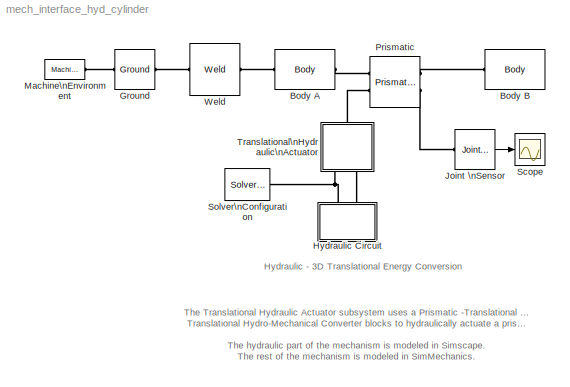
MODEL mech_interface_hyd_cylinder
KIND model
CONFIG PostLoadFcn = hws = get_param(gcs, 'modelworkspace');\n\nhws.assignin('a_a', 0.5);\nhws.assignin('a_b', 0.25);\nhws.assignin('a_c', 0.25);\nhws.assignin('b_a', 0.5);\nhws.assignin('b_b', 0.25);\nhws.assignin('b_c', 0.25);\n\nhws.assignin('Ma', 1);\nhws.assignin('Mb', 1);\n\nhws.evalin('Ia = [1/3*Ma*(a_b^2 + a_c^2) 0 0;   0 1/3*Ma*(a_a^2 + a_c^2) 0;   0 0 1/3*Ma*(a_a^2 + a_b^2)];')\nhws.evalin('Ib = [1/3*Mb*(b_b...<+92ch>
BLOCK [Reference] Body A  REF=mblibv1/Bodies/Body
  AttachedToCS = 1
  BodyColor = [0.5 0.5 0.5]
  CG = Left$CG$[a_a 0 0]$CS5$CS5$m$[0 0 0]$Euler X-Y-Z$deg$WORLD$false
  CGPos = [a_a 0 0]
  CGRot = [0 0 0]
  CS0Pos = []
  CS0Rot = []
  CS10Pos = []
  CS10Rot = []
  CS11Pos = []
  CS11Rot = []
  CS12Pos = []
  CS12Rot = []
  CS13Pos = []
  CS13Rot = []
  CS14Pos = []
  CS14Rot = []
  CS15Pos = []
  CS15Rot = []
  CS16Pos = []
  CS16Rot = []
  CS17Pos = []
  CS17Rot = []
  CS18Pos = []
  CS18Rot = []
  CS19Pos = []
  CS19Rot = []
  CS1Pos = [0 -a_b 0]
  CS1Rot = [0 0 0]
  CS20Pos = []
  CS20Rot = []
  CS2Pos = [2*a_a -a_b 0]
  CS2Rot = [0 0 0]
  CS3Pos = [2*a_a a_b 0]
  CS3Rot = [0 0 0]
  CS4Pos = [0 a_b 0]
  CS4Rot = [0 0 0]
  CS5Pos = [0 0 0]
  CS5Rot = [0 0 0]
  CS6Pos = [2*a_a 0 0]
  CS6Rot = [0 0 0]
  CS7Pos = []
  CS7Rot = []
  CS8Pos = []
  CS8Rot = []
  CS9Pos = []
  CS9Rot = []
  ClassName = Body
  Density = 1
  DensityUnits = kg/m^3
  DensityUse = false
  DialogClass = MechanicalBodyBlock
  DialogController = MECH.DynMechDlgSource
  GraphicsMode = 1
  GraphicsObj = []
  Inertia = Ia
  InertiaUnits = kg*m^2
  LConnTagsString = CS5
  LeftPortType = workingframe
  Mass = Ma
  MassUnits = kg
  PhysicalDomain = mechanical
  Ports = [0, 0, 0, 0, 0, 1, 1]
  RConnTagsString = CS6
  RightPortType = workingframe
  Shape = Cylinder
  ShapeDims = [1 1]
  ShapeUnits = m
  ShapeUse = false
  SourceBlock = mblibv1/Bodies/Body
  SourceType = Body
  SubClassName = Unknown
  WorkingFrames = Left$CS5$[0 0 0]$Adjoining$Adjoining$m$[0 0 0]$Euler X-Y-Z$deg$WORLD$true#Left$CS1$[0 -a_b 0]$CS5$CS5$m$[0 0 0]$Euler X-Y-Z$deg$WORLD$false#Right$CS2$[2*a_a -a_b 0]$CS5$CS5$m$[0 0 0]$Euler X-Y-Z$deg$WORLD$false#Right$CS6$[2*a_a 0 0]$CS5$CS5$m$[0 0 0]$Euler X-Y-Z$deg$WORLD$true#Right$CS3$[2*a_a a_b 0]$CS5$CS5$m$[0 0 0]$Euler X-Y-Z$deg$WORLD$false#Right$CS4$[0 a_b 0]$CS5$CS5$m$[0 0 0]$Euler X-Y-Z$de...<+13ch>
BLOCK [Reference] Body B  REF=mblibv1/Bodies/Body
  AttachedToCS = 1
  BodyColor = [0.5 0.5 0.5]
  CG = Left$CG$[b_a 0 0]$CS5$CS5$m$[0 0 0]$Euler X-Y-Z$deg$WORLD$false
  CGPos = [b_a 0 0]
  CGRot = [0 0 0]
  CS0Pos = []
  CS0Rot = []
  CS10Pos = []
  CS10Rot = []
  CS11Pos = []
  CS11Rot = []
  CS12Pos = []
  CS12Rot = []
  CS13Pos = []
  CS13Rot = []
  CS14Pos = []
  CS14Rot = []
  CS15Pos = []
  CS15Rot = []
  CS16Pos = []
  CS16Rot = []
  CS17Pos = []
  CS17Rot = []
  CS18Pos = []
  CS18Rot = []
  CS19Pos = []
  CS19Rot = []
  CS1Pos = [0 -b_b 0]
  CS1Rot = [0 0 0]
  CS20Pos = []
  CS20Rot = []
  CS2Pos = [2*b_a -b_b 0]
  CS2Rot = [0 0 0]
  CS3Pos = [2*b_a b_b 0]
  CS3Rot = [0 0 0]
  CS4Pos = [0 b_b 0]
  CS4Rot = [0 0 0]
  CS5Pos = [b_a 0 0]
  CS5Rot = [0 0 0]
  CS6Pos = [2*b_a 0 0]
  CS6Rot = [0 0 0]
  CS7Pos = []
  CS7Rot = []
  CS8Pos = []
  CS8Rot = []
  CS9Pos = []
  CS9Rot = []
  ClassName = Body
  Density = 1
  DensityUnits = kg/m^3
  DensityUse = false
  DialogClass = MechanicalBodyBlock
  DialogController = MECH.DynMechDlgSource
  GraphicsMode = 1
  GraphicsObj = []
  Inertia = Ib
  InertiaUnits = kg*m^2
  LConnTagsString = CS5
  LeftPortType = workingframe
  Mass = Mb
  MassUnits = kg
  PhysicalDomain = mechanical
  Ports = [0, 0, 0, 0, 0, 1]
  RightPortType = workingframe
  Shape = Cylinder
  ShapeDims = [1 1]
  ShapeUnits = m
  ShapeUse = false
  SourceBlock = mblibv1/Bodies/Body
  SourceType = Body
  SubClassName = Unknown
  WorkingFrames = Left$CS5$[b_a 0 0]$Adjoining$Adjoining$m$[0 0 0]$Euler X-Y-Z$deg$WORLD$true#Left$CS1$[0 -b_b 0]$CS5$CS5$m$[0 0 0]$Euler X-Y-Z$deg$WORLD$false#Right$CS2$[2*b_a -b_b 0]$CS5$CS5$m$[0 0 0]$Euler X-Y-Z$deg$WORLD$false#Right$CS6$[2*b_a 0 0]$CS5$CS5$m$[0 0 0]$Euler X-Y-Z$deg$WORLD$false#Right$CS3$[2*b_a b_b 0]$CS5$CS5$m$[0 0 0]$Euler X-Y-Z$deg$WORLD$false#Right$CS4$[0 b_b 0]$CS5$CS5$m$[0 0 0]$Euler X-Y-Z...<+16ch>
BLOCK [Reference] Ground  REF=mblibv1/Bodies/Ground
  ClassName = Ground
  CoordPosition = [0 0 0]
  CoordPositionUnits = m
  DialogClass = GroundBlock
  DialogController = MECH.DynMechDlgSource
  FunctionWithSeparateData = off
  LeftPortType = env
  MachineId = [0 0]
  PhysicalDomain = Mechanical
  Ports = [0, 0, 0, 0, 0, 1, 1]
  RTWMemSecDataConstants = Inherit from model
  RTWMemSecDataInternal = Inherit from model
  RTWMemSecDataParameters = Inherit from model
  RTWMemSecFuncExecute = Inherit from model
  RTWMemSecFuncInitTerm = Inherit from model
  RightPortType = workingframe
  ShowEnvPort = on
  ShowPortLabels = FromPortIcon
  SourceBlock = mblibv1/Bodies/Ground
  SourceType = Ground
  StateVectorMgrId = -1
  SystemSampleTime = -1
  UserData = DataTag1
  UserDataPersistent = on
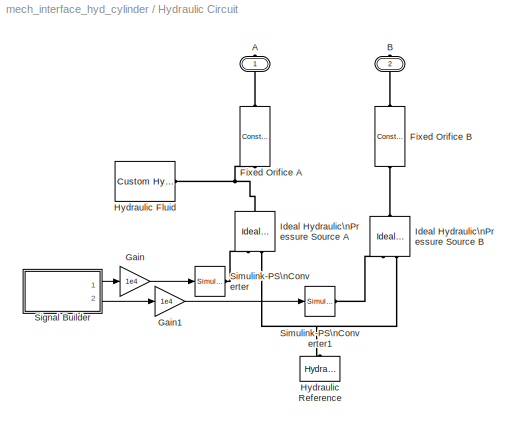
BLOCK [SubSystem] Hydraulic Circuit
  FunctionWithSeparateData = off
  MaskHideContents = off
  MinAlgLoopOccurrences = off
  Opaque = off
  Ports = [0, 0, 0, 0, 0, 0, 2]
  PropExecContextOutsideSubsystem = off
  RTWSystemCode = Auto
  RequestExecContextInheritance = off
BLOCK [PMIOPort] Hydraulic Circuit/A
  Port = 1
  Side = Right
BLOCK [PMIOPort] Hydraulic Circuit/B
  Port = 2
  Side = Right
BLOCK [Reference] Hydraulic Circuit/Fixed Orifice A  REF=fl_lib/Hydraulic/Hydraulic Elements/Constant Area\nOrifice
  C_d = 0.7
  C_d_unit = 1
  ClassName = orifice_fixed
  DialogController = NetworkEngine.DynNeDlgSource
  FunctionWithSeparateData = off
  LocalVarDescs = |Flow rate through the orifice (m^3/s)|Pressure drop across the orifice (Pa)|Reynolds number|Power (W)
  LocalVarLogging = [0 0 0 0]
  LocalVarNames = |flow_rate|pr_drop|Re|power
  Ports = [0, 0, 0, 0, 0, 1, 1]
  RTWMemSecDataConstants = Inherit from model
  RTWMemSecDataInternal = Inherit from model
  RTWMemSecDataParameters = Inherit from model
  RTWMemSecFuncExecute = Inherit from model
  RTWMemSecFuncInitTerm = Inherit from model
  Re_cr = 12
  Re_cr_unit = 1
  SchemaVersion = 1
  ShowPortLabels = FromPortIcon
  SourceBlock = fl_lib/Hydraulic/Hydraulic Elements/Constant Area\nOrifice
  SourceType = Constant Area\nOrifice
  SystemSampleTime = -1
  area = 1e-04
  area_unit = m^2
  flow_rate_Log = off
  power_Log = off
  pr_drop_Log = off
BLOCK [Reference] Hydraulic Circuit/Fixed Orifice B  REF=fl_lib/Hydraulic/Hydraulic Elements/Constant Area\nOrifice
  C_d = 0.7
  C_d_unit = 1
  ClassName = orifice_fixed
  DialogController = NetworkEngine.DynNeDlgSource
  FunctionWithSeparateData = off
  LocalVarDescs = |Flow rate through the orifice (m^3/s)|Pressure drop across the orifice (Pa)|Reynolds number|Power (W)
  LocalVarLogging = [0 0 0 0]
  LocalVarNames = |flow_rate|pr_drop|Re|power
  Ports = [0, 0, 0, 0, 0, 1, 1]
  RTWMemSecDataConstants = Inherit from model
  RTWMemSecDataInternal = Inherit from model
  RTWMemSecDataParameters = Inherit from model
  RTWMemSecFuncExecute = Inherit from model
  RTWMemSecFuncInitTerm = Inherit from model
  Re_cr = 12
  Re_cr_unit = 1
  SchemaVersion = 1
  ShowPortLabels = FromPortIcon
  SourceBlock = fl_lib/Hydraulic/Hydraulic Elements/Constant Area\nOrifice
  SourceType = Constant Area\nOrifice
  SystemSampleTime = -1
  area = 1e-04
  area_unit = m^2
  flow_rate_Log = off
  power_Log = off
  pr_drop_Log = off
BLOCK [Gain] Hydraulic Circuit/Gain
  Gain = 1e4
  OutDataType = sfix(16)
  OutDataTypeMode = Inherit via internal rule
  OutDataTypeStr = Inherit: Inherit via internal rule
  OutScaling = 2^0
  ParamDataTypeStr = Inherit: Inherit via internal rule
  ParameterDataType = sfix(16)
  ParameterDataTypeMode = Inherit via internal rule
  ParameterScaling = 2^0
  SaturateOnIntegerOverflow = off
BLOCK [Gain] Hydraulic Circuit/Gain1
  Gain = 1e4
  OutDataType = sfix(16)
  OutDataTypeMode = Inherit via internal rule
  OutDataTypeStr = Inherit: Inherit via internal rule
  OutScaling = 2^0
  ParamDataTypeStr = Inherit: Inherit via internal rule
  ParameterDataType = sfix(16)
  ParameterDataTypeMode = Inherit via internal rule
  ParameterScaling = 2^0
  SaturateOnIntegerOverflow = off
BLOCK [Reference] Hydraulic Circuit/Hydraulic Fluid  REF=fl_lib/Hydraulic/Hydraulic Utilities/Custom Hydraulic\nFluid
  ClassName = custom_fluid
  DialogController = NetworkEngine.DynNeDlgSource
  FunctionWithSeparateData = off
  LocalVarLogging = []
  Ports = [0, 0, 0, 0, 0, 0, 1]
  RTWMemSecDataConstants = Inherit from model
  RTWMemSecDataInternal = Inherit from model
  RTWMemSecDataParameters = Inherit from model
  RTWMemSecFuncExecute = Inherit from model
  RTWMemSecFuncInitTerm = Inherit from model
  SchemaVersion = 1
  ShowPortLabels = FromPortIcon
  SourceBlock = fl_lib/Hydraulic/Hydraulic Utilities/Custom Hydraulic\nFluid
  SourceType = Custom Hydraulic\nFluid
  SystemSampleTime = -1
  alpha = 0.005
  alpha_unit = 1
  bulk = 1.24285e+09
  bulk_unit = Pa
  density = 961.873
  density_unit = kg/m^3
  viscosity_kin = 7.12831
  viscosity_kin_unit = cSt
BLOCK [Reference] Hydraulic Circuit/Hydraulic Reference  REF=fl_lib/Hydraulic/Hydraulic Elements/Hydraulic Reference
  ClassName = hydro_reference
  DialogController = NetworkEngine.DynNeDlgSource
  FunctionWithSeparateData = off
  LocalVarLogging = []
  Ports = [0, 0, 0, 0, 0, 1]
  RTWMemSecDataConstants = Inherit from model
  RTWMemSecDataInternal = Inherit from model
  RTWMemSecDataParameters = Inherit from model
  RTWMemSecFuncExecute = Inherit from model
  RTWMemSecFuncInitTerm = Inherit from model
  SchemaVersion = 1
  ShowPortLabels = FromPortIcon
  SourceBlock = fl_lib/Hydraulic/Hydraulic Elements/Hydraulic Reference
  SourceType = Hydraulic Reference
  SystemSampleTime = -1
BLOCK [Reference] Hydraulic Circuit/Ideal Hydraulic\nPressure Source A  REF=fl_lib/Hydraulic/Hydraulic Sensors\nand Sources/Ideal Hydraulic\nPressure Source
  ClassName = pressure_src
  DialogController = NetworkEngine.DynNeDlgSource
  FunctionWithSeparateData = off
  LocalVarDescs = |Flow rate through the source (m^3/s)|Pressure differential across the source (Pa)|Source power (W)
  LocalVarLogging = [0 0 0]
  LocalVarNames = |flow_rate|pr_differential|power
  Ports = [0, 0, 0, 0, 0, 1, 2]
  RTWMemSecDataConstants = Inherit from model
  RTWMemSecDataInternal = Inherit from model
  RTWMemSecDataParameters = Inherit from model
  RTWMemSecFuncExecute = Inherit from model
  RTWMemSecFuncInitTerm = Inherit from model
  SchemaVersion = 1
  ShowPortLabels = FromPortIcon
  SourceBlock = fl_lib/Hydraulic/Hydraulic Sensors\nand Sources/Ideal Hydraulic\nPressure Source
  SourceType = Ideal Hydraulic\nPressure Source
  SystemSampleTime = -1
  flow_rate_Log = off
  power_Log = off
  pr_differential_Log = off
BLOCK [Reference] Hydraulic Circuit/Ideal Hydraulic\nPressure Source B  REF=fl_lib/Hydraulic/Hydraulic Sensors\nand Sources/Ideal Hydraulic\nPressure Source
  ClassName = pressure_src
  DialogController = NetworkEngine.DynNeDlgSource
  FunctionWithSeparateData = off
  LocalVarDescs = |Flow rate through the source (m^3/s)|Pressure differential across the source (Pa)|Source power (W)
  LocalVarLogging = [0 0 0]
  LocalVarNames = |flow_rate|pr_differential|power
  Ports = [0, 0, 0, 0, 0, 1, 2]
  RTWMemSecDataConstants = Inherit from model
  RTWMemSecDataInternal = Inherit from model
  RTWMemSecDataParameters = Inherit from model
  RTWMemSecFuncExecute = Inherit from model
  RTWMemSecFuncInitTerm = Inherit from model
  SchemaVersion = 1
  ShowPortLabels = FromPortIcon
  SourceBlock = fl_lib/Hydraulic/Hydraulic Sensors\nand Sources/Ideal Hydraulic\nPressure Source
  SourceType = Ideal Hydraulic\nPressure Source
  SystemSampleTime = -1
  flow_rate_Log = off
  power_Log = off
  pr_differential_Log = off
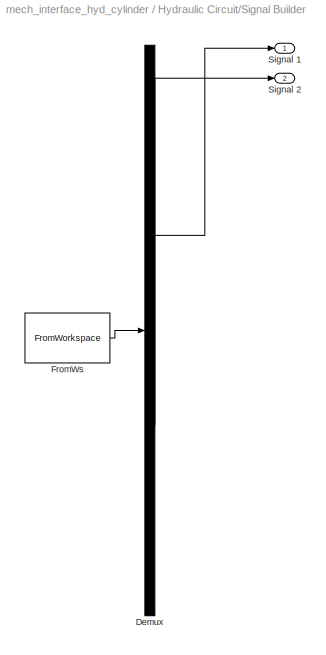
BLOCK [SubSystem] Hydraulic Circuit/Signal Builder
  ClipboardFcn = sigbuilder_block('clipboard');
  CloseFcn = sigbuilder_block('close');
  CopyFcn = sigbuilder_block('copy');
  DeleteFcn = sigbuilder_block('delete');
  FunctionWithSeparateData = off
  LoadFcn = sigbuilder_block('load');
  MaskCapabilities = slmaskedcaps(gcbh)
  MaskDescription = Sigbuilder GUI
  MaskDisplay = plot(0,0,100,100,[10,10,40,40,10],[80,20,20,80,80],[40,10],[50,50], [40,27,10],[65,72,56],[40,25,25,10],[28,28,43,43]);
  MaskHideContents = off
  MaskIconFrame = on
  MaskIconOpaque = off
  MaskIconRotate = port
  MaskIconUnits = autoscale
  MaskInitialization = if ~strcmp(get_param(bdroot(gcbh),'SimulationStatus'),'stopped') tuvar = sigbuilder_block('maskInit'); end
  MaskType = Sigbuilder block
  MinAlgLoopOccurrences = off
  ModelCloseFcn = sigbuilder_block('modelClose');
  NameChangeFcn = sigbuilder_block('namechange');
  Opaque = off
  OpenFcn = sigbuilder_block('open',[46.5 475.5 550.5 371.25 ]);
  Ports = [0, 2]
  PreSaveFcn = sigbuilder_block('preSave');
  PropExecContextOutsideSubsystem = off
  RTWSystemCode = Auto
  RequestExecContextInheritance = off
  StartFcn = sigbuilder_block('start');
  StopFcn = sigbuilder_block('stop');
  Tag = STV Subsys
BLOCK [Demux] Hydraulic Circuit/Signal Builder/Demux
  Outputs = 2
  Ports = [1, 2]
  Tag = STV Demux
BLOCK [FromWorkspace] Hydraulic Circuit/Signal Builder/FromWs
  SampleTime = 0
  SigBuilderData = DataTag2
  Tag = STV FromWs
  VariableName = tuvar
  VnvData = DataTag3
  ZeroCross = on
BLOCK [Outport] Hydraulic Circuit/Signal Builder/Signal 1
  IconDisplay = Port number
  OutDataType = sfix(16)
  OutScaling = 2^0
  Tag = STV Outport
BLOCK [Outport] Hydraulic Circuit/Signal Builder/Signal 2
  IconDisplay = Port number
  OutDataType = sfix(16)
  OutScaling = 2^0
  Port = 2
  Tag = STV Outport
BLOCK [Reference] Hydraulic Circuit/Simulink-PS\nConverter  REF=nesl_utility/Simulink-PS\nConverter
  AffineConversion = off
  DialogController = NetworkEngine.DynNeUtilDlgSource
  FunctionWithSeparateData = off
  LeftPortType = input
  PhysicalDomain = network_engine_domain
  Ports = [1, 0, 0, 0, 0, 0, 1]
  RTWMemSecDataConstants = Inherit from model
  RTWMemSecDataInternal = Inherit from model
  RTWMemSecDataParameters = Inherit from model
  RTWMemSecFuncExecute = Inherit from model
  RTWMemSecFuncInitTerm = Inherit from model
  RightPortType = output
  ShowPortLabels = FromPortIcon
  SourceBlock = nesl_utility/Simulink-PS\nConverter
  SourceType = Simulink-PS\nConverter
  SubClassName = ps_input
  SystemSampleTime = -1
  Unit = N/m^2
BLOCK [Reference] Hydraulic Circuit/Simulink-PS\nConverter1  REF=nesl_utility/Simulink-PS\nConverter
  AffineConversion = off
  DialogController = NetworkEngine.DynNeUtilDlgSource
  FunctionWithSeparateData = off
  LeftPortType = input
  PhysicalDomain = network_engine_domain
  Ports = [1, 0, 0, 0, 0, 0, 1]
  RTWMemSecDataConstants = Inherit from model
  RTWMemSecDataInternal = Inherit from model
  RTWMemSecDataParameters = Inherit from model
  RTWMemSecFuncExecute = Inherit from model
  RTWMemSecFuncInitTerm = Inherit from model
  RightPortType = output
  ShowPortLabels = FromPortIcon
  SourceBlock = nesl_utility/Simulink-PS\nConverter
  SourceType = Simulink-PS\nConverter
  SubClassName = ps_input
  SystemSampleTime = -1
  Unit = N/m^2
BLOCK [Reference] Joint \nSensor  REF=mblibv1/Sensors & \nActuators/Joint Sensor
  Acceleration = off
  AccelerationUnits = m/s^2
  ActiveIO = on
  Angle = on
  AngleUnits = deg
  ArcAcceleration = off
  ArcAccelerationUnits = deg/s^2
  ArcVelocity = off
  ArcVelocityUnits = deg/s
  ClassName = JointSensor
  CoordPosition = on
  CoordPositionUnits = m
  DialogClass = MechanicalSensorBlock
  DialogController = MECH.DynMechDlgSource
  Force = off
  ForceUnits = N
  FunctionWithSeparateData = off
  Muxed = on
  OutputVector = [1]
  PhysicalDomain = Mechanical
  PortType = blob
  Ports = [0, 1, 0, 0, 0, 1]
  Pose = off
  Primitive = P1
  Quaternion = on
  QuaternionDDT = off
  QuaternionDT = off
  QuaternionUnits = off
  RTWMemSecDataConstants = Inherit from model
  RTWMemSecDataInternal = Inherit from model
  RTWMemSecDataParameters = Inherit from model
  RTWMemSecFuncExecute = Inherit from model
  RTWMemSecFuncInitTerm = Inherit from model
  ReactionForce = off
  ReactionForceUnits = N
  ReactionMoment = off
  ReactionMomentUnits = N*m
  ReactionReferenceFrame = Absolute (World)
  ReactionSensedSide = Base
  ReferenceFrame = Absolute (World)
  ShowPortLabels = FromPortIcon
  SourceBlock = mblibv1/Sensors & \nActuators/Joint Sensor
  SourceType = Joint Sensor
  SystemSampleTime = -1
  Torque = off
  TorqueUnits = N*m
  Velocity = off
  VelocityUnits = m/s
  Width = 1
BLOCK [Reference] Machine\nEnvironment  REF=mblibv1/Bodies/Machine\nEnvironment
  AnalysisType = Forward dynamics
  AngularAssemblyTolerance = 1e-3
  AngularAssemblyToleranceUnits = rad
  ClassName = Environment
  ConstraintAbsTolerance = 1e-4
  ConstraintRelTolerance = 1e-4
  ConstraintSolverType = Stabilizing
  DialogController = MECH.DialogSource
  DialogTemplateClass = MECH.MachineEnvironment
  Dimensionality = Auto-detect
  FunctionWithSeparateData = off
  Gravity = [0 -9.81 0]
  GravityAsSignal = off
  GravityUnits = m/s^2
  LinearAssemblyTolerance = 1e-3
  LinearAssemblyToleranceUnits = m
  PerturbationSize = 1e-5
  PhysicalDomain = Mechanical
  PortType = env
  Ports = [0, 0, 0, 0, 0, 0, 1]
  RTWMemSecDataConstants = Inherit from model
  RTWMemSecDataInternal = Inherit from model
  RTWMemSecDataParameters = Inherit from model
  RTWMemSecFuncExecute = Inherit from model
  RTWMemSecFuncInitTerm = Inherit from model
  RedundancyAnalysisTolerance = 1e-14
  RedundancyAnalysisToleranceType = Automatically select tolerance
  ShowPortLabels = FromPortIcon
  SourceBlock = mblibv1/Bodies/Machine\nEnvironment
  SourceType = Machine Environment
  StatePerturbationType = Fixed
  SyncWhenCopied = off
  SystemSampleTime = -1
  Tag = Factory ground
  UseRobustSingularityHandling = off
  VisualizeMachine = on
BLOCK [Reference] Prismatic  REF=mblibv1/Joints/Prismatic
  ClassName = Joint
  CutJoint = off
  DialogClass = JointBlock
  DialogController = MECH.DynMechDlgSource
  LConnTagsString = __newl0|SA1
  LeftPortType = blob
  MarkAsCut = off
  NumSAPorts = 2
  P1Axis = [1 0 0]
  PhysicalDomain = mechanical
  Ports = [0, 0, 0, 0, 0, 2, 2]
  PrimitiveProps = P1$World$[1 0 0]$prismatic
  Primitives = prismatic
  RConnTagsString = __newr0|SA1
  RightPortType = blob
  SourceBlock = mblibv1/Joints/Prismatic
  SourceType = Prismatic
  SubClassName = Unknown
BLOCK [Scope] Scope
  DataFormat = StructureWithTime
  Floating = off
  NumInputPorts = 1
  Ports = [1]
  SampleTime = 0
  TimeRange = 10
  YMax = 1.4
  YMin = -0.2
BLOCK [Reference] Solver\nConfiguration  REF=nesl_utility/Solver\nConfiguration
  Accelerate = off
  DialogController = NetworkEngine.DynNeUtilDlgSource
  DoDC = off
  DoFixedCost = off
  FunctionWithSeparateData = off
  LeftPortType = input
  LinearAlgebra = Sparse
  MaxModeIter = 2
  MaxNonlinIter = 12
  PhysicalDomain = network_engine_domain
  Ports = [0, 0, 0, 0, 0, 0, 1]
  Profile = off
  RTWMemSecDataConstants = Inherit from model
  RTWMemSecDataInternal = Inherit from model
  RTWMemSecDataParameters = Inherit from model
  RTWMemSecFuncExecute = Inherit from model
  RTWMemSecFuncInitTerm = Inherit from model
  ResidualTolerance = 1e-9
  RightPortType = generic
  ShowPortLabels = FromPortIcon
  SourceBlock = nesl_utility/Solver\nConfiguration
  SourceType = Solver\nConfiguration
  SubClassName = solver
  SystemSampleTime = -1
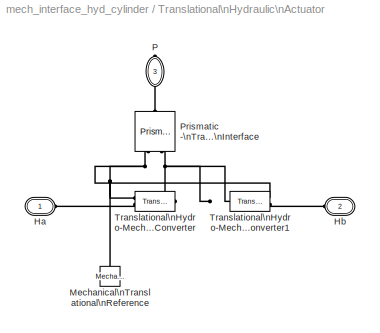
BLOCK [SubSystem] Translational\nHydraulic\nActuator
  FunctionWithSeparateData = off
  MaskHideContents = off
  MinAlgLoopOccurrences = off
  Opaque = off
  Ports = [0, 0, 0, 0, 0, 2, 1]
  PropExecContextOutsideSubsystem = off
  RTWSystemCode = Auto
  RequestExecContextInheritance = off
BLOCK [PMIOPort] Translational\nHydraulic\nActuator/Ha
  Port = 1
  Side = Left
  Tag = PMCPort
BLOCK [PMIOPort] Translational\nHydraulic\nActuator/Hb
  Port = 2
  Side = Left
  Tag = PMCPort
BLOCK [Reference] Translational\nHydraulic\nActuator/Mechanical\nTranslational\nReference  REF=fl_lib/Mechanical/Translational\nElements/Mechanical\nTranslational\nReference
  ClassName = reference_transl
  DialogController = NetworkEngine.DynNeDlgSource
  FunctionWithSeparateData = off
  LocalVarLogging = []
  Ports = [0, 0, 0, 0, 0, 1]
  RTWMemSecDataConstants = Inherit from model
  RTWMemSecDataInternal = Inherit from model
  RTWMemSecDataParameters = Inherit from model
  RTWMemSecFuncExecute = Inherit from model
  RTWMemSecFuncInitTerm = Inherit from model
  SchemaVersion = 1
  ShowPortLabels = FromPortIcon
  SourceBlock = fl_lib/Mechanical/Translational\nElements/Mechanical\nTranslational\nReference
  SourceType = Mechanical\nTranslational\nReference
  SystemSampleTime = -1
BLOCK [PMIOPort] Translational\nHydraulic\nActuator/P
  Port = 3
  Side = Right
  Tag = PMCPort
BLOCK [Reference] Translational\nHydraulic\nActuator/Prismatic -\nTranslational\nInterface  REF=mblibv1/Interface \nElements/Prismatic -\nTranslational\nInterface
  ClassName = PrismaticTranslationalInterface
  DialogClass = PrismaticTranslationalInterface
  DialogController = MECH.DynMechDlgSource
  FunctionWithSeparateData = off
  Ports = [0, 0, 0, 0, 0, 2, 1]
  Primitive = P1
  RTWMemSecDataConstants = Inherit from model
  RTWMemSecDataInternal = Inherit from model
  RTWMemSecDataParameters = Inherit from model
  RTWMemSecFuncExecute = Inherit from model
  RTWMemSecFuncInitTerm = Inherit from model
  ShowPortLabels = FromPortIcon
  SourceBlock = mblibv1/Interface \nElements/Prismatic -\nTranslational\nInterface
  SourceType = Prismatic - Translational Interface
  SystemSampleTime = -1
BLOCK [Reference] Translational\nHydraulic\nActuator/Translational\nHydro-Mechanical\nConverter  REF=fl_lib/Hydraulic/Hydraulic Elements/Translational\nHydro-Mechanical\nConverter
  ClassName = converter_transl
  DialogController = NetworkEngine.DynNeDlgSource
  FunctionWithSeparateData = off
  LocalVarDescs = |Flow rate into the chamber (m^3/s)|Pressure at the inlet (Pa)|Output force (N)|Power (W)
  LocalVarLogging = [0 0 0 0]
  LocalVarNames = |flow_rate|pressure|force|power
  Ports = [0, 0, 0, 0, 0, 2, 1]
  RTWMemSecDataConstants = Inherit from model
  RTWMemSecDataInternal = Inherit from model
  RTWMemSecDataParameters = Inherit from model
  RTWMemSecFuncExecute = Inherit from model
  RTWMemSecFuncInitTerm = Inherit from model
  SchemaVersion = 1
  ShowPortLabels = FromPortIcon
  SourceBlock = fl_lib/Hydraulic/Hydraulic Elements/Translational\nHydro-Mechanical\nConverter
  SourceType = Translational\nHydro-Mechanical\nConverter
  SystemSampleTime = -1
  area = 5e-04
  area_unit = m^2
  flow_rate_Log = off
  force_Log = off
  or = 1
  or_unit = 1
  power_Log = off
  pressure_Log = off
BLOCK [Reference] Translational\nHydraulic\nActuator/Translational\nHydro-Mechanical\nConverter1  REF=fl_lib/Hydraulic/Hydraulic Elements/Translational\nHydro-Mechanical\nConverter
  ClassName = converter_transl
  DialogController = NetworkEngine.DynNeDlgSource
  FunctionWithSeparateData = off
  LocalVarDescs = |Flow rate into the chamber (m^3/s)|Pressure at the inlet (Pa)|Output force (N)|Power (W)
  LocalVarLogging = [0 0 0 0]
  LocalVarNames = |flow_rate|pressure|force|power
  Ports = [0, 0, 0, 0, 0, 2, 1]
  RTWMemSecDataConstants = Inherit from model
  RTWMemSecDataInternal = Inherit from model
  RTWMemSecDataParameters = Inherit from model
  RTWMemSecFuncExecute = Inherit from model
  RTWMemSecFuncInitTerm = Inherit from model
  SchemaVersion = 1
  ShowPortLabels = FromPortIcon
  SourceBlock = fl_lib/Hydraulic/Hydraulic Elements/Translational\nHydro-Mechanical\nConverter
  SourceType = Translational\nHydro-Mechanical\nConverter
  SystemSampleTime = -1
  area = 5e-04
  area_unit = m^2
  flow_rate_Log = off
  force_Log = off
  or = 2
  or_unit = 1
  power_Log = off
  pressure_Log = off
BLOCK [Reference] Weld  REF=mblibv1/Joints/Weld
  ClassName = Joint
  CutJoint = off
  DialogClass = JointBlock
  DialogController = MECH.DynMechDlgSource
  LConnTagsString = __newl0
  LeftPortType = blob
  MarkAsCut = off
  NumSAPorts = 0
  PhysicalDomain = mechanical
  Ports = [0, 0, 0, 0, 0, 1, 1]
  PrimitiveProps = W$World$[0 0 0]$weld
  Primitives = weld
  RConnTagsString = __newr0
  RightPortType = blob
  SourceBlock = mblibv1/Joints/Weld
  SourceType = Weld
  SubClassName = Unknown
  WAxis = [0 0 0]
ANNOTATION (root): Hydraulic - 3D Translational Energy Conversion
ANNOTATION (root): The Translational Hydraulic Actuator subsystem uses a Prismatic -Translational Interface block and \nTranslational Hydro-Mechanical Converter blocks to hydraulically actuate a prismatic joint.\n\nThe hydraulic part of the mechanism is modeled in Simscape.\nThe rest of the mechanism is modeled in SimMechanics.
LINE Hydraulic Circuit/Gain1:1 -> Hydraulic Circuit/Simulink-PS\nConverter1:1
LINE Hydraulic Circuit/Gain:1 -> Hydraulic Circuit/Simulink-PS\nConverter:1
LINE Hydraulic Circuit/Signal Builder/Demux:1 -> Hydraulic Circuit/Signal Builder/Signal 1:1
LINE Hydraulic Circuit/Signal Builder/Demux:2 -> Hydraulic Circuit/Signal Builder/Signal 2:1
LINE Hydraulic Circuit/Signal Builder/FromWs:1 -> Hydraulic Circuit/Signal Builder/Demux:1
LINE Hydraulic Circuit/Signal Builder:1 -> Hydraulic Circuit/Gain:1
LINE Hydraulic Circuit/Signal Builder:2 -> Hydraulic Circuit/Gain1:1
LINE Joint \nSensor:1 -> Scope:1
PLINE Body A:LConn1 -- Weld:RConn1
PLINE Body A:RConn1 -- Prismatic:LConn1
PLINE Body B:LConn1 -- Prismatic:RConn1
PLINE Ground:LConn1 -- Machine\nEnvironment:RConn1
PLINE Ground:RConn1 -- Weld:LConn1
PLINE Hydraulic Circuit/A:RConn1 -- Hydraulic Circuit/Fixed Orifice A:RConn1
PLINE Hydraulic Circuit/B:RConn1 -- Hydraulic Circuit/Fixed Orifice B:LConn1
PNET net1: Hydraulic Circuit/Fixed Orifice A:LConn1 -- Hydraulic Circuit/Hydraulic Fluid:RConn1 -- Hydraulic Circuit/Ideal Hydraulic\nPressure Source A:LConn1
PLINE Hydraulic Circuit/Fixed Orifice B:RConn1 -- Hydraulic Circuit/Ideal Hydraulic\nPressure Source B:LConn1
PNET net2: Hydraulic Circuit/Hydraulic Reference:LConn1 -- Hydraulic Circuit/Ideal Hydraulic\nPressure Source A:RConn2 -- Hydraulic Circuit/Ideal Hydraulic\nPressure Source B:RConn2
PLINE Hydraulic Circuit/Ideal Hydraulic\nPressure Source A:RConn1 -- Hydraulic Circuit/Simulink-PS\nConverter:RConn1
PLINE Hydraulic Circuit/Ideal Hydraulic\nPressure Source B:RConn1 -- Hydraulic Circuit/Simulink-PS\nConverter1:RConn1
PNET net3: Hydraulic Circuit:RConn1 -- Solver\nConfiguration:RConn1 -- Translational\nHydraulic\nActuator:LConn1
PLINE Hydraulic Circuit:RConn2 -- Translational\nHydraulic\nActuator:LConn2
PLINE Joint \nSensor:LConn1 -- Prismatic:RConn2
PLINE Prismatic:LConn2 -- Translational\nHydraulic\nActuator:RConn1
PLINE Translational\nHydraulic\nActuator/Ha:RConn1 -- Translational\nHydraulic\nActuator/Translational\nHydro-Mechanical\nConverter:LConn2
PLINE Translational\nHydraulic\nActuator/Hb:RConn1 -- Translational\nHydraulic\nActuator/Translational\nHydro-Mechanical\nConverter1:LConn2
PNET net4: Translational\nHydraulic\nActuator/Mechanical\nTranslational\nReference:LConn1 -- Translational\nHydraulic\nActuator/Prismatic -\nTranslational\nInterface:LConn1 -- Translational\nHydraulic\nActuator/Translational\nHydro-Mechanical\nConverter1:LConn1 -- Translational\nHydraulic\nActuator/Translational\nHydro-Mechanical\nConverter:LConn1
PLINE Translational\nHydraulic\nActuator/P:RConn1 -- Translational\nHydraulic\nActuator/Prismatic -\nTranslational\nInterface:RConn1
PNET net5: Translational\nHydraulic\nActuator/Prismatic -\nTranslational\nInterface:LConn2 -- Translational\nHydraulic\nActuator/Translational\nHydro-Mechanical\nConverter1:RConn1 -- Translational\nHydraulic\nActuator/Translational\nHydro-Mechanical\nConverter:RConn1
note: PNET lines group multi-terminal physical nets as a canonical sorted terminal list (undirected conserving connections); 2-terminal nets keep the pairwise PLINE form
